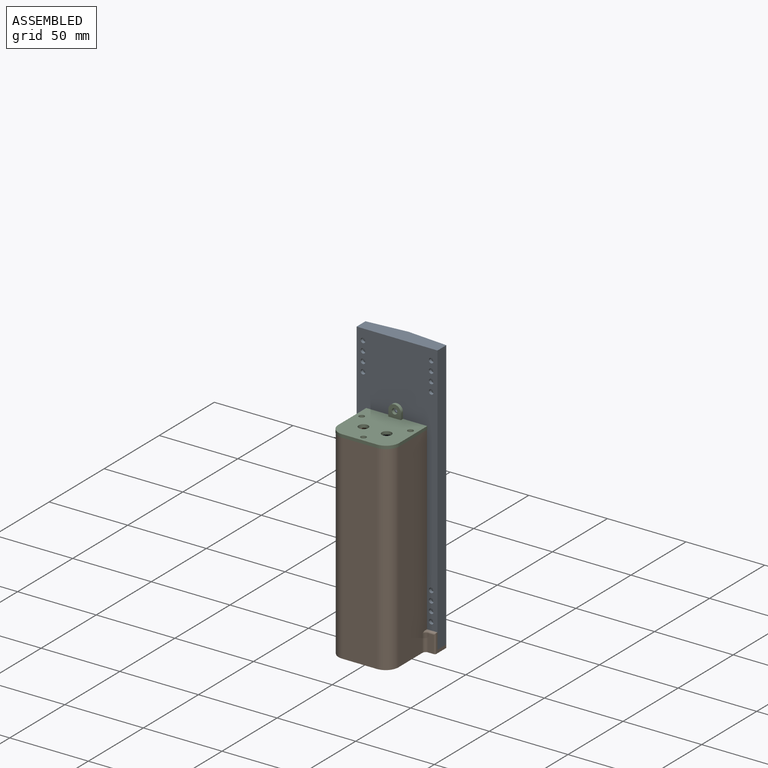
[diagram: assembled view]
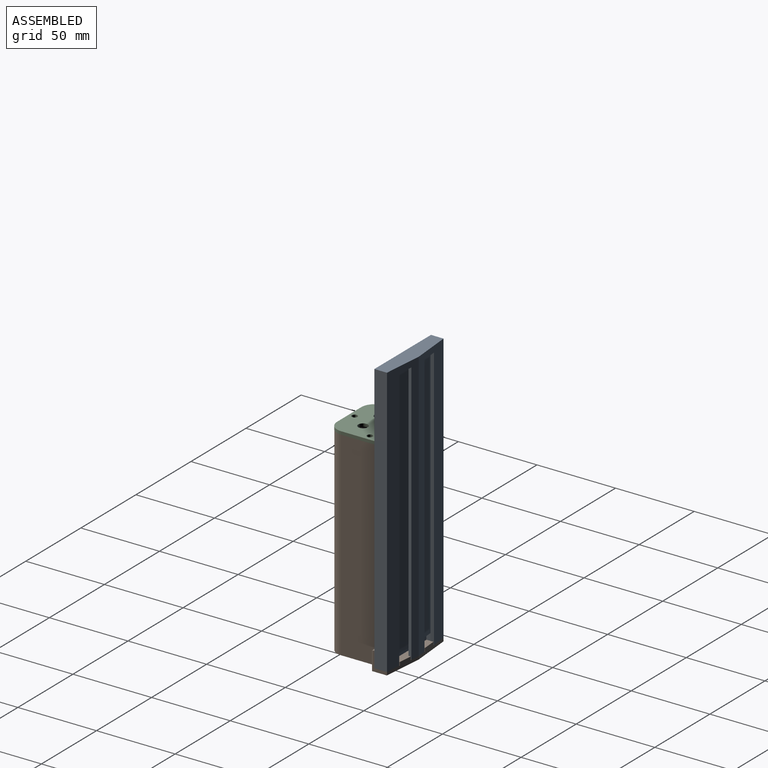
[diagram: assembled view, second angle]
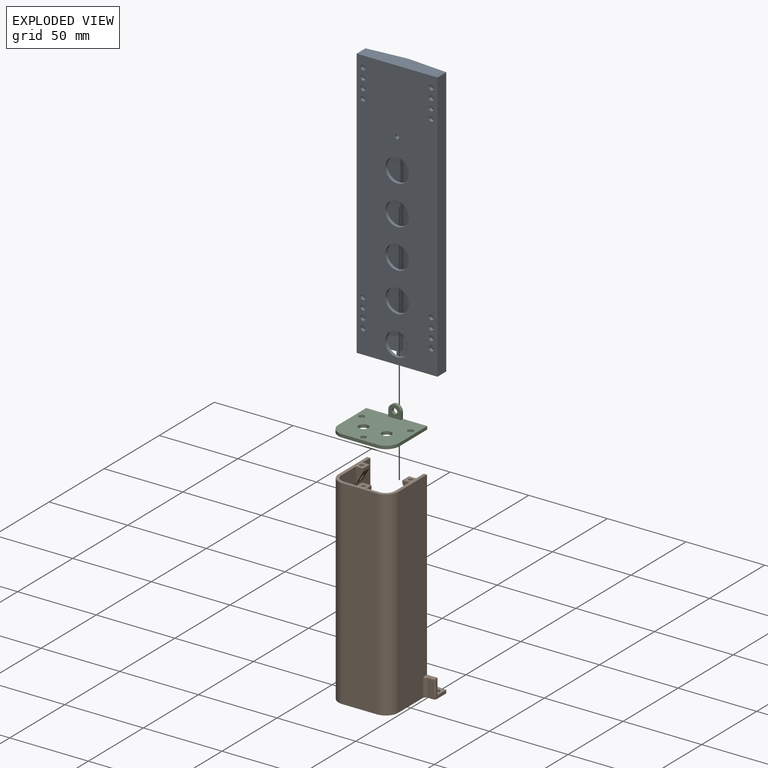
[diagram: exploded view]
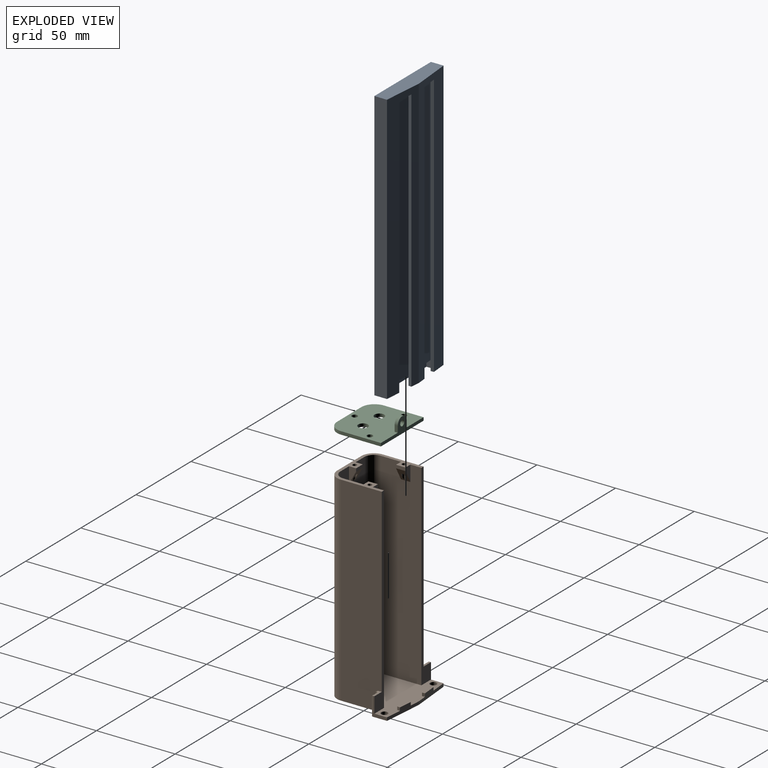
[diagram: exploded view, second angle]
ASSEMBLY  parts=3 mates=2
PART A: 80 faces, bbox 51.4x10.3x172 mm
  f0: cylinder r=2.5mm len=3.69mm, axis (0,-1,0), area 5mm2, adj f22,f24,f69,f71,f72,f75
  f1: plane 170x47.4mm, normal (0,1,0), area 6928.3mm2, adj f3,f4,f28,f34,f40,f41,f42,f43
  f2: plane 172x51.4mm, normal (0,-1,0), area 7839.4mm2, adj f4,f31,f32,f36,f48,f49,f50,f51
  f3: plane 163x4.17mm, normal (-1,0,0), area 675.2mm2, adj f1,f27,f34,f40,f46,f47
  f4: plane 51.4x8.87mm, normal (0,0,-1), area 186.2mm2, adj f1,f2,f8,f18,f20,f29,f30,f31
  f5: plane 163x4.15mm, normal (0.09,-1,0), area 679.3mm2, adj f6,f28,f34,f42
  f6: plane 163x2.99mm, normal (-1,-0.09,0), area 489mm2, adj f5,f7,f34,f42
  f7: plane 165x17.73mm, normal (0.09,-1,0), area 2926.5mm2, adj f6,f22,f34,f39,f42,f43,f72,f73
  f8: plane 170x16.88mm, normal (-0.09,-1,0), area 880.3mm2, adj f4,f9,f10,f14,f16,f17,f18,f23
  f9: plane 17.15x4.49mm, normal (0,0,-1), area 29mm2, adj f8,f14,f15,f16,f24,f25,f41
  f10: plane 11.95x2.52mm, normal (0,0,-1), area 23.9mm2, adj f8,f17,f19,f23,f29,f30,f33
  f11: plane 165x1.49mm, normal (-1,-0.09,0), area 247.5mm2, adj f12,f21,f29,f39
  f12: plane 165x14.74mm, normal (-0.09,1,0), area 2442mm2, adj f11,f13,f21,f39
  f13: plane 165x1.49mm, normal (1,0.09,0), area 247.5mm2, adj f12,f21,f29,f39
  f14: plane 165x1.49mm, normal (-1,0.09,0), area 247.5mm2, adj f8,f9,f15,f35
  f15: plane 165x14.74mm, normal (0.09,1,0), area 2442mm2, adj f9,f14,f16,f35
  f16: plane 165x1.49mm, normal (1,-0.09,0), area 247.5mm2, adj f8,f9,f15,f35
  f17: plane 168x1.99mm, normal (1,-0.09,0), area 336mm2, adj f8,f10,f33,f38
  f18: plane 168x1.99mm, normal (-1,0.09,0), area 336mm2, adj f4,f8,f33,f38
  f19: plane 168x1.99mm, normal (-1,-0.09,0), area 336mm2, adj f10,f29,f30,f37
  f20: plane 168x1.99mm, normal (1,0.09,0), area 336mm2, adj f4,f29,f30,f37
  f21: plane 14.87x2.78mm, normal (0,0,-1), area 22.2mm2, adj f11,f12,f13,f29
  f22: plane 165.02x4.05mm, normal (1,0.09,0), area 494mm2, adj f0,f7,f23,f34,f39,f69,f70,f72
  f23: plane 170x3.64mm, normal (0,-1,0), area 618.1mm2, adj f8,f10,f22,f24,f29,f34
  f24: plane 165.02x4.05mm, normal (-1,0.09,0), area 494mm2, adj f0,f9,f23,f25,f34,f69,f70,f75
  f25: plane 165x17.73mm, normal (-0.09,-1,0), area 2926.5mm2, adj f9,f24,f26,f34,f40,f41,f75,f76
  f26: plane 163x2.99mm, normal (1,-0.09,0), area 489mm2, adj f25,f27,f34,f40
  f27: plane 163x4.15mm, normal (-0.09,-1,0), area 679.3mm2, adj f3,f26,f34,f40
  f28: plane 163x4.17mm, normal (1,0,0), area 675.2mm2, adj f1,f5,f34,f42,f44,f45
  f29: plane 170x16.88mm, normal (0.09,-1,0), area 880.3mm2, adj f4,f10,f11,f13,f19,f20,f21,f23
  f30: plane 172x25.7mm, normal (-0.09,1,0), area 2791.2mm2, adj f4,f10,f19,f20,f31,f33,f36,f37
  f31: plane 172x8mm, normal (-1,0,0), area 1376mm2, adj f2,f4,f30,f36
  f32: plane 172x8mm, normal (1,0,0), area 1376mm2, adj f2,f4,f33,f36
  f33: plane 172x25.7mm, normal (0.09,1,0), area 2791.2mm2, adj f4,f10,f17,f18,f30,f32,f36,f38
  f34: plane 47.4x6.08mm, normal (0,0,-1), area 139.6mm2, adj f1,f3,f5,f6,f7,f22,f23,f24
  f35: plane 14.87x2.78mm, normal (0,0,-1), area 22.2mm2, adj f8,f14,f15,f16
  f36: plane 51.4x10.25mm, normal (0,0,1), area 469mm2, adj f2,f30,f31,f32,f33
  f37: plane 9.94x2.85mm, normal (0,0,-1), area 19.6mm2, adj f19,f20,f29,f30
  f38: plane 9.94x2.85mm, normal (0,0,-1), area 19.6mm2, adj f8,f17,f18,f33
  f39: plane 17.15x4.49mm, normal (0,0,-1), area 29mm2, adj f7,f11,f12,f13,f22,f29,f43
  f40: plane 5x4.53mm, normal (0,0,1), area 11.4mm2, adj f1,f3,f25,f26,f27,f41,f47
  f41: plane 7x4.6mm, normal (-1,0,0), area 26.2mm2, adj f1,f4,f8,f9,f25,f40
  f42: plane 5x4.53mm, normal (0,0,1), area 11.4mm2, adj f1,f5,f6,f7,f28,f43,f44
  f43: plane 7x4.6mm, normal (1,0,0), area 26.2mm2, adj f1,f4,f7,f29,f39,f42
  f44: cylinder r=1.65mm len=10mm, axis (0,0,-1), area 76.8mm2, adj f4,f28,f42,f45
  f45: plane 1.37x0.15mm, normal (0,0,-1), area 0.1mm2, adj f28,f44
  f46: plane 1.37x0.15mm, normal (0,0,-1), area 0.1mm2, adj f3,f47
  f47: cylinder r=1.65mm len=10mm, axis (0,0,-1), area 76.8mm2, adj f3,f4,f40,f46
  f48: cylinder r=7.5mm len=15mm, axis (0,-1,0), area 94.2mm2, adj f1,f2
  f49: cylinder r=7.5mm len=15mm, axis (0,-1,0), area 94.2mm2, adj f1,f2
  f50: cylinder r=7.5mm len=15mm, axis (0,-1,0), area 94.2mm2, adj f1,f2
  f51: cylinder r=7.5mm len=15mm, axis (0,-1,0), area 94.2mm2, adj f1,f2
  f52: cylinder r=7.5mm len=15mm, axis (0,-1,0), area 94.2mm2, adj f1,f2
  f53: cylinder r=1.5mm len=3mm, axis (0,-1,0), area 18.8mm2, adj f1,f2
  f54: cylinder r=1.5mm len=3mm, axis (0,-1,0), area 18.8mm2, adj f1,f2
  f55: cylinder r=1.5mm len=3mm, axis (0,-1,0), area 18.8mm2, adj f1,f2
  f56: cylinder r=1.5mm len=3mm, axis (0,-1,0), area 18.8mm2, adj f1,f2
  f57: cylinder r=1.5mm len=3mm, axis (0,-1,0), area 18.8mm2, adj f1,f2
  f58: cylinder r=1.5mm len=3mm, axis (0,-1,0), area 18.8mm2, adj f1,f2
  f59: cylinder r=1.5mm len=3mm, axis (0,-1,0), area 18.8mm2, adj f1,f2
  f60: cylinder r=1.5mm len=3mm, axis (0,-1,0), area 18.8mm2, adj f1,f2
  f61: cylinder r=1.5mm len=3mm, axis (0,-1,0), area 18.8mm2, adj f1,f2
  f62: cylinder r=1.5mm len=3mm, axis (0,-1,0), area 18.8mm2, adj f1,f2
  f63: cylinder r=1.5mm len=3mm, axis (0,-1,0), area 18.8mm2, adj f1,f2
  f64: cylinder r=1.5mm len=3mm, axis (0,-1,0), area 18.8mm2, adj f1,f2
  f65: cylinder r=1.5mm len=3mm, axis (0,-1,0), area 18.8mm2, adj f1,f2
  f66: cylinder r=1.5mm len=3mm, axis (0,-1,0), area 18.8mm2, adj f1,f2
  f67: cylinder r=1.5mm len=3mm, axis (0,-1,0), area 18.8mm2, adj f1,f2
  f68: cylinder r=1.5mm len=3mm, axis (0,-1,0), area 18.8mm2, adj f1,f2
  f69: plane 5x3.18mm, normal (0,1,0), area 14.8mm2, adj f0,f22,f24,f70
  f70: cylinder r=2.5mm len=3.69mm, axis (0,-1,0), area 5mm2, adj f22,f24,f69,f71,f74,f77
  f71: torus R=4.5mm, axis (0,1,0), area 62.9mm2, adj f0,f1,f70,f73,f76
  f72: bspline ~1.62x1.49mm, area 1.3mm2, adj f0,f7,f22,f73
  f73: bspline ~5.31x2.11mm, area 7.2mm2, adj f7,f71,f72,f74
  f74: bspline ~1.62x1.49mm, area 1.3mm2, adj f7,f22,f70,f73
  f75: bspline ~1.62x1.49mm, area 1.3mm2, adj f0,f24,f25,f76
  f76: bspline ~5.31x2.11mm, area 7.2mm2, adj f25,f71,f75,f77
  f77: bspline ~1.62x1.49mm, area 1.3mm2, adj f24,f25,f70,f76
  f78: cylinder r=1.3mm len=5mm, axis (0,-1,0), area 40.8mm2, adj f2,f79
  f79: plane 2.6x2.6mm, normal (0,-1,0), area 5.3mm2, adj f78
PART B: 56 faces, bbox 52.4x45.2x128 mm
  f0: plane 51.4x42.25mm, normal (0,0,1), area 1482.2mm2, adj f2,f4,f5,f6,f14,f15,f16,f17
  f1: plane 38x34mm, normal (0,0,1), area 257.1mm2, adj f2,f8,f9,f10,f11,f12,f17,f19
  f2: plane 125x26mm, normal (-1,0,0), area 3190mm2, adj f0,f1,f19,f22,f28,f29,f31
  f3: plane 51.4x44.25mm, normal (0,0,-1), area 1733.9mm2, adj f4,f5,f6,f7,f8,f9,f10,f11
  f4: plane 25.7x4mm, normal (0.09,1,0), area 69.2mm2, adj f0,f3,f5,f14,f44,f46,f47
  f5: plane 25.7x4mm, normal (-0.09,1,0), area 69.2mm2, adj f0,f3,f4,f6,f40,f42,f43
  f6: plane 12x9mm, normal (-1,0,0), area 28mm2, adj f0,f3,f5,f17,f18,f53
  f7: plane 11x3.7mm, normal (0,-1,0), area 40.7mm2, adj f3,f48,f53,f54
  f8: plane 127.31x26.31mm, normal (-1,0,0), area 3254.8mm2, adj f1,f3,f9,f17,f18,f48,f55
  f9: cylinder r=8mm len=127mm, axis (0,0,-1), area 1595.9mm2, adj f1,f3,f8,f10
  f10: plane 127x22mm, normal (0,-1,0), area 2794mm2, adj f1,f3,f9,f11
  f11: cylinder r=8mm len=127mm, axis (0,0,-1), area 1595.9mm2, adj f1,f3,f10,f12
  f12: plane 127.31x26.31mm, normal (1,0,0), area 3254.8mm2, adj f1,f3,f11,f19,f20,f49,f52
  f13: plane 11x3.7mm, normal (0,-1,0), area 40.7mm2, adj f3,f49,f50,f51
  f14: plane 12x9mm, normal (1,0,0), area 28mm2, adj f0,f3,f4,f19,f20,f50
  f15: cylinder r=2.1mm len=4.2mm, axis (0,0,1), area 26.4mm2, adj f0,f3
  f16: cylinder r=2.1mm len=4.2mm, axis (0,0,1), area 26.4mm2, adj f0,f3
  f17: plane 125x8.7mm, normal (0,1,0), area 317mm2, adj f0,f1,f6,f8,f18,f21
  f18: plane 6.7x1.76mm, normal (0,0,1), area 7.2mm2, adj f6,f8,f17,f54,f55
  f19: plane 125x8.7mm, normal (0,1,0), area 317mm2, adj f0,f1,f2,f12,f14,f20
  f20: plane 6.7x1.76mm, normal (0,0,1), area 7.2mm2, adj f12,f14,f19,f51,f52
  f21: plane 125x26mm, normal (1,0,0), area 3190mm2, adj f0,f1,f17,f24,f25,f26,f32
  f22: cylinder r=6mm len=125mm, axis (0,0,-1), area 1178.1mm2, adj f0,f1,f2,f23
  f23: plane 125x22mm, normal (0,1,0), area 2690mm2, adj f0,f1,f22,f24,f33,f34,f36
  f24: cylinder r=6mm len=125mm, axis (0,0,-1), area 1178.1mm2, adj f0,f1,f21,f23
  f25: plane 10x4.5mm, normal (0,-1,0), area 27mm2, adj f1,f21,f27,f32
  f26: plane 10x4.5mm, normal (0,1,0), area 27mm2, adj f1,f21,f27,f32
  f27: plane 6x2mm, normal (1,0,0), area 12mm2, adj f1,f25,f26,f32
  f28: plane 10x4.5mm, normal (0,-1,0), area 27mm2, adj f1,f2,f30,f31
  f29: plane 10x4.5mm, normal (0,1,0), area 27mm2, adj f1,f2,f30,f31
  f30: plane 6x2mm, normal (-1,0,0), area 12mm2, adj f1,f28,f29,f31
  f31: plane 8.97x6.97mm, normal (-0.87,0,-0.49), area 44.2mm2, adj f2,f28,f29,f30,f39
  f32: plane 8x6mm, normal (0.87,0,-0.49), area 44.2mm2, adj f21,f25,f26,f27,f38
  f33: plane 10x4.5mm, normal (1,0,0), area 27mm2, adj f1,f23,f35,f36
  f34: plane 10x4.5mm, normal (-1,0,0), area 27mm2, adj f1,f23,f35,f36
  f35: plane 6x2mm, normal (0,1,0), area 12mm2, adj f1,f33,f34,f36
  f36: plane 8.97x6.97mm, normal (0,0.87,-0.49), area 44.2mm2, adj f23,f33,f34,f35,f37
  f37: cylinder r=1.3mm len=9.66mm, axis (0,0,1), area 60.5mm2, adj f1,f36
  f38: cylinder r=1.3mm len=9.68mm, axis (0,0,1), area 59.9mm2, adj f1,f32
  f39: cylinder r=1.3mm len=9.64mm, axis (0,0,1), area 59.9mm2, adj f1,f31
  f40: plane 2x1.79mm, normal (-1,-0.09,0), area 3.6mm2, adj f0,f5,f41,f43
  f41: plane 8.77x2mm, normal (0.09,-1,0), area 17.6mm2, adj f0,f40,f42,f43
  f42: plane 2x1.79mm, normal (1,0.09,0), area 3.6mm2, adj f0,f5,f41,f43
  f43: plane 8.92x2.56mm, normal (0,0,1), area 15.8mm2, adj f5,f40,f41,f42
  f44: plane 2x1.79mm, normal (-1,0.09,0), area 3.6mm2, adj f0,f4,f45,f47
  f45: plane 8.77x2mm, normal (-0.09,-1,0), area 17.6mm2, adj f0,f44,f46,f47
  f46: plane 2x1.79mm, normal (1,-0.09,0), area 3.6mm2, adj f0,f4,f45,f47
  f47: plane 8.92x2.56mm, normal (0,0,1), area 15.8mm2, adj f4,f44,f45,f46
  f48: cylinder r=2mm len=11mm, axis (0,0,1), area 34.6mm2, adj f3,f7,f8,f55
  f49: cylinder r=2mm len=11mm, axis (0,0,1), area 34.6mm2, adj f3,f12,f13,f52
  f50: cylinder r=1mm len=12mm, axis (0,0,-1), area 18.1mm2, adj f3,f13,f14,f51
  f51: cylinder r=1mm len=4.7mm, axis (-1,0,0), area 6.6mm2, adj f13,f20,f50,f52
  f52: torus R=3mm, axis (0,0,1), area 4.2mm2, adj f12,f20,f49,f51
  f53: cylinder r=1mm len=12mm, axis (0,0,1), area 18.1mm2, adj f3,f6,f7,f54
  f54: cylinder r=1mm len=4.7mm, axis (-1,0,0), area 6.6mm2, adj f7,f18,f53,f55
  f55: torus R=3mm, axis (0,0,1), area 4.2mm2, adj f8,f18,f48,f54
PART C: 18 faces, bbox 38.8x33.7x10 mm
  f0: plane 38.8x33.7mm, normal (0,0,1), area 1174mm2, adj f2,f3,f4,f5,f6,f7,f8,f9
  f1: plane 38.8x33.7mm, normal (0,0,-1), area 1190mm2, adj f2,f3,f4,f5,f6,f7,f8,f9
  f2: plane 25.3x2mm, normal (1,0,0), area 50.6mm2, adj f0,f1,f3,f7
  f3: plane 38.8x10mm, normal (0,1,0), area 125.1mm2, adj f0,f1,f2,f4,f11,f13,f14,f15
  f4: plane 25.3x2mm, normal (-1,0,0), area 50.6mm2, adj f0,f1,f3,f5
  f5: cylinder r=8.4mm len=8.4mm, axis (0,0,-1), area 26.4mm2, adj f0,f1,f4,f6
  f6: plane 22x2mm, normal (0,-1,0), area 44mm2, adj f0,f1,f5,f7
  f7: cylinder r=8.4mm len=8.4mm, axis (0,0,-1), area 26.4mm2, adj f0,f1,f2,f6
  f8: cylinder r=1.75mm len=3.5mm, axis (0,0,1), area 22mm2, adj f0,f1
  f9: cylinder r=1.75mm len=3.5mm, axis (0,0,1), area 22mm2, adj f0,f1
  f10: cylinder r=1.75mm len=3.5mm, axis (0,0,1), area 22mm2, adj f0,f1
  f11: plane 4x2mm, normal (-1,0,0), area 8mm2, adj f0,f3,f12,f14
  f12: plane 8x8mm, normal (0,-1,0), area 47.5mm2, adj f0,f11,f13,f14,f15
  f13: plane 4x2mm, normal (1,0,0), area 8mm2, adj f0,f3,f12,f14
  f14: cylinder r=4mm len=8mm, axis (0,-1,0), area 25.1mm2, adj f3,f11,f12,f13
  f15: cylinder r=1.75mm len=3.5mm, axis (0,-1,0), area 22mm2, adj f3,f12
  f16: cylinder r=3.05mm len=6.1mm, axis (0,0,1), area 38.3mm2, adj f0,f1
  f17: cylinder r=3.05mm len=6.1mm, axis (0,0,1), area 38.3mm2, adj f0,f1
PLACE A t=(-67.43,22.75,-1.16)mm
PLACE B t=(-67.43,22.75,-3.16)mm
PLACE C t=(-67.43,-19.09,123.84)mm
MATE slider C.f8 <-> B.f38  axis (0,0,-1) through (-82.93,2.51,123.84)mm
MATE planar B.f0 <-> A.f4  axis (0,0,1) through (-93.14,20.51,-1.16)mm
